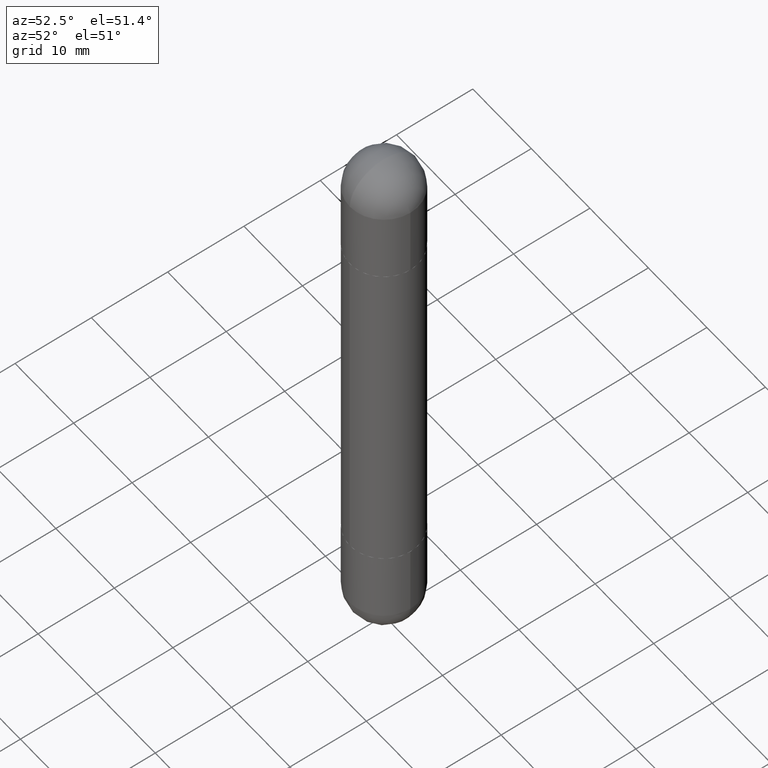
[diagram: clean part render]
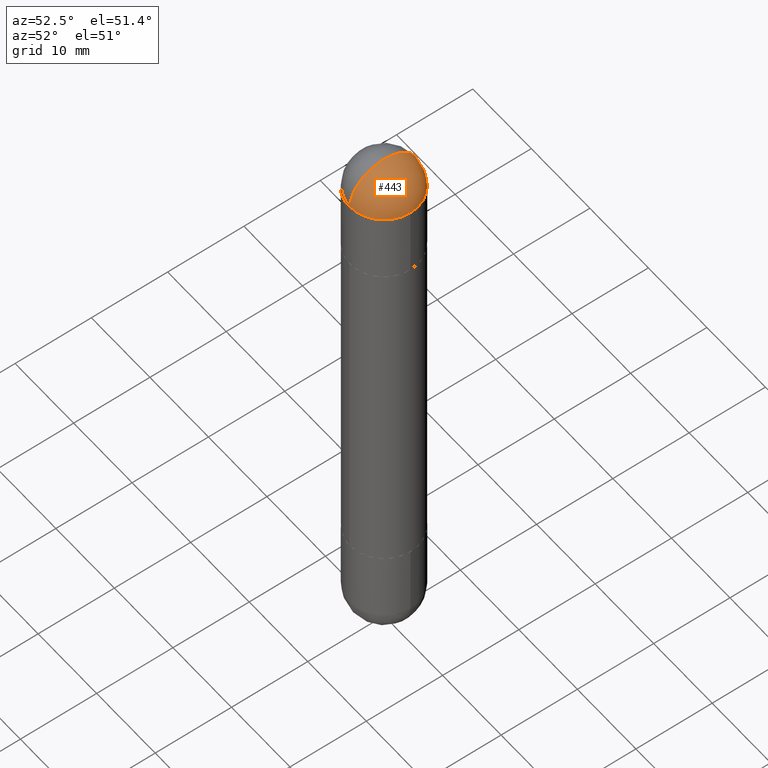
[diagram: same view with one face highlighted and labeled with its STEP entity id]
A machine part, auxiliary view. The second image highlights one B-rep face of the part: STEP entity #443.
In plain terms, the highlighted spherical surface has radius 4.4996 mm.
Its self-contained STEP definition (entity closure, byte-faithful):
#11 = DIRECTION ( 'NONE',  ( -1.000000000000000000, 6.982962677686265922E-15, 4.883557194083112340E-29 ) ) ;
#45 = CARTESIAN_POINT ( 'NONE',  ( -1.215337220305161228E-15, -0.1771500000000100772, -0.1771500000000006680 ) ) ;
#47 = DIRECTION ( 'NONE',  ( 6.982962677686265922E-15, 1.000000000000000000, 3.469747663417772269E-15 ) ) ;
#55 = DIRECTION ( 'NONE',  ( 1.000000000000000000, -6.982962677686272233E-15, 0.000000000000000000 ) ) ;
#78 = CARTESIAN_POINT ( 'NONE',  ( 6.456645713973887554E-29, -1.016531254630002526E-14, -0.1771500000000000574 ) ) ;
#88 = CARTESIAN_POINT ( 'NONE',  ( 6.456645713973887554E-29, -1.016531254630002526E-14, -0.1771500000000000574 ) ) ;
#130 = EDGE_CURVE ( 'NONE', #489, #147, #139, .T. ) ;
#134 = FACE_OUTER_BOUND ( 'NONE', #295, .T. ) ;
#139 = CIRCLE ( 'NONE', #305, 0.1771500000000000019 ) ;
#147 = VERTEX_POINT ( 'NONE', #592 ) ;
#182 = DIRECTION ( 'NONE',  ( 1.000000000000000000, -6.982962677686265922E-15, -4.883557194083112340E-29 ) ) ;
#188 = CARTESIAN_POINT ( 'NONE',  ( 6.787765491887772680E-29, -9.691130178159974964E-15, -0.1771500000000000574 ) ) ;
#249 = CARTESIAN_POINT ( 'NONE',  ( 1.237031838352189250E-15, 0.1771499999999902042, -0.1771499999999994468 ) ) ;
#266 = CARTESIAN_POINT ( 'NONE',  ( 6.787765491887772680E-29, -9.691130178159974964E-15, -0.1771500000000000574 ) ) ;
#291 = CIRCLE ( 'NONE', #357, 0.1771500000000002517 ) ;
#294 = EDGE_CURVE ( 'NONE', #526, #489, #291, .T. ) ;
#295 = EDGE_LOOP ( 'NONE', ( #403, #419, #349, #681 ) ) ;
#305 = AXIS2_PLACEMENT_3D ( 'NONE', #266, #458, #703 ) ;
#349 = ORIENTED_EDGE ( 'NONE', *, *, #130, .T. ) ;
#357 = AXIS2_PLACEMENT_3D ( 'NONE', #88, #579, #766 ) ;
#361 = DIRECTION ( 'NONE',  ( 2.445468806185136597E-29, -3.491481338843145583E-15, 1.000000000000000000 ) ) ;
#380 = CARTESIAN_POINT ( 'NONE',  ( 6.897435148395990892E-29, -1.077298115645264157E-14, 2.048885995248197414E-16 ) ) ;
#389 = CIRCLE ( 'NONE', #610, 0.1771500000000000019 ) ;
#403 = ORIENTED_EDGE ( 'NONE', *, *, #647, .F. ) ;
#419 = ORIENTED_EDGE ( 'NONE', *, *, #294, .T. ) ;
#443 = ADVANCED_FACE ( 'NONE', ( #134 ), #637, .T. ) ;
#458 = DIRECTION ( 'NONE',  ( 2.445468806185136597E-29, -3.491481338843145583E-15, 1.000000000000000000 ) ) ;
#489 = VERTEX_POINT ( 'NONE', #45 ) ;
#504 = VERTEX_POINT ( 'NONE', #249 ) ;
#526 = VERTEX_POINT ( 'NONE', #380 ) ;
#549 = AXIS2_PLACEMENT_3D ( 'NONE', #575, #182, #47 ) ;
#575 = CARTESIAN_POINT ( 'NONE',  ( 6.456645713973887554E-29, -1.016531254630002526E-14, -0.1771500000000000574 ) ) ;
#579 = DIRECTION ( 'NONE',  ( 1.000000000000000000, -6.860497997771530774E-15, -4.840798879624142912E-29 ) ) ;
#580 = EDGE_CURVE ( 'NONE', #147, #504, #389, .T. ) ;
#585 = DIRECTION ( 'NONE',  ( -6.982962677686265922E-15, -1.000000000000000000, 0.000000000000000000 ) ) ;
#592 = CARTESIAN_POINT ( 'NONE',  ( 0.1771500000000000019, -1.027516771911496009E-14, -0.1771500000000000574 ) ) ;
#610 = AXIS2_PLACEMENT_3D ( 'NONE', #188, #361, #55 ) ;
#626 = AXIS2_PLACEMENT_3D ( 'NONE', #78, #11, #585 ) ;
#637 = SPHERICAL_SURFACE ( 'NONE', #549, 0.1771500000000002517 ) ;
#647 = EDGE_CURVE ( 'NONE', #526, #504, #762, .T. ) ;
#681 = ORIENTED_EDGE ( 'NONE', *, *, #580, .T. ) ;
#703 = DIRECTION ( 'NONE',  ( 1.000000000000000000, -6.982962677686272233E-15, 0.000000000000000000 ) ) ;
#762 = CIRCLE ( 'NONE', #626, 0.1771500000000002517 ) ;
#766 = DIRECTION ( 'NONE',  ( 6.860497997771531562E-15, 1.000000000000000000, 0.000000000000000000 ) ) ;